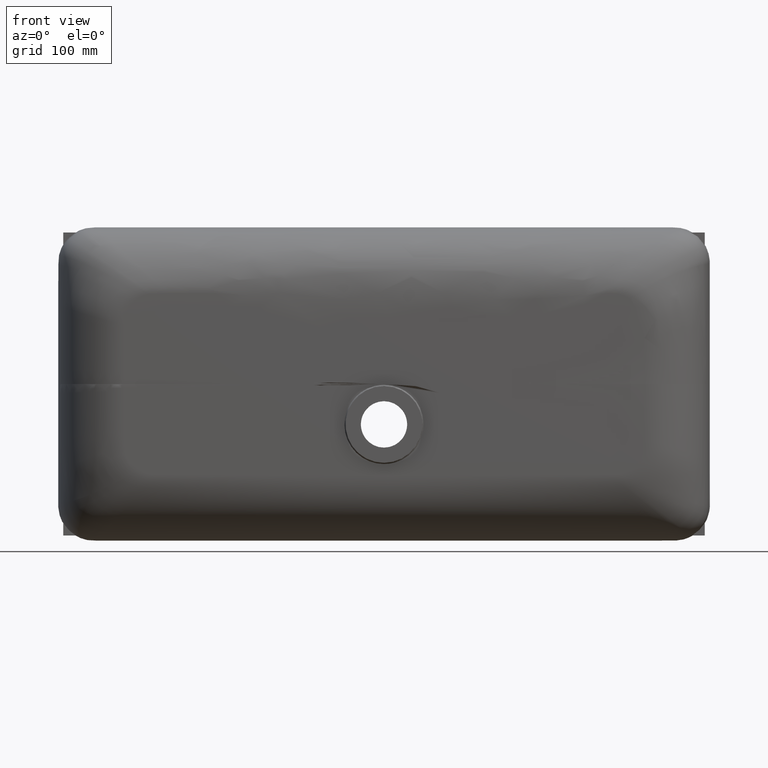
[diagram: clean part render]
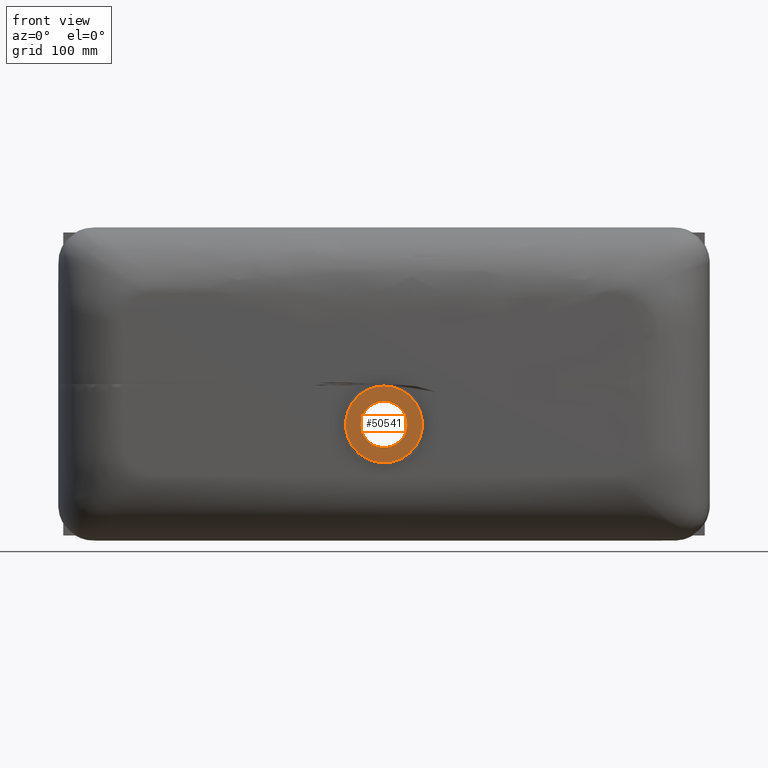
[diagram: same view with one face highlighted and labeled with its STEP entity id]
A machine part, front view. The second image highlights one B-rep face of the part: STEP entity #50541.
In plain terms, the highlighted planar face has unit normal (0, 1, 0).
Its self-contained STEP definition (entity closure, byte-faithful):
#9421 = CIRCLE ( 'NONE', #113271, 38.00000000000000000 ) ;
#13285 = CIRCLE ( 'NONE', #182597, 23.00000000000000000 ) ;
#39462 = ORIENTED_EDGE ( 'NONE', *, *, #148124, .F. ) ;
#41163 = AXIS2_PLACEMENT_3D ( 'NONE', #147967, #42133, #165717 ) ;
#42133 = DIRECTION ( 'NONE',  ( 0.0000000000000000000, 1.000000000000000000, 0.0000000000000000000 ) ) ;
#42904 = CARTESIAN_POINT ( 'NONE',  ( 0.0000000000000000000, -110.0000000000000100, -40.00000000000000700 ) ) ;
#45800 = ORIENTED_EDGE ( 'NONE', *, *, #176130, .F. ) ;
#48972 = CARTESIAN_POINT ( 'NONE',  ( 0.0000000000000000000, -110.0000000000136400, -40.00000000000000700 ) ) ;
#50541 = ADVANCED_FACE ( 'NONE', ( #140756, #165787 ), #201267, .F. ) ;
#60460 = EDGE_CURVE ( 'NONE', #82693, #167705, #13285, .T. ) ;
#60685 = DIRECTION ( 'NONE',  ( 0.0000000000000000000, 0.0000000000000000000, 1.000000000000000000 ) ) ;
#66776 = DIRECTION ( 'NONE',  ( 0.0000000000000000000, 0.0000000000000000000, 1.000000000000000000 ) ) ;
#69396 = VERTEX_POINT ( 'NONE', #87631 ) ;
#82693 = VERTEX_POINT ( 'NONE', #216479 ) ;
#87631 = CARTESIAN_POINT ( 'NONE',  ( 0.0000000000000000000, -110.0000000000136400, -78.00000000000001400 ) ) ;
#89387 = CARTESIAN_POINT ( 'NONE',  ( 4.653657836759941200E-015, -110.0000000000136400, -2.000000000000008900 ) ) ;
#104427 = DIRECTION ( 'NONE',  ( 0.0000000000000000000, 1.000000000000000000, 0.0000000000000000000 ) ) ;
#113271 = AXIS2_PLACEMENT_3D ( 'NONE', #48972, #172545, #66776 ) ;
#126274 = EDGE_LOOP ( 'NONE', ( #219553, #140320 ) ) ;
#132745 = CIRCLE ( 'NONE', #41163, 38.00000000000000000 ) ;
#136278 = VERTEX_POINT ( 'NONE', #89387 ) ;
#140320 = ORIENTED_EDGE ( 'NONE', *, *, #154195, .T. ) ;
#140756 = FACE_BOUND ( 'NONE', #126274, .T. ) ;
#144297 = EDGE_LOOP ( 'NONE', ( #45800, #39462 ) ) ;
#145033 = AXIS2_PLACEMENT_3D ( 'NONE', #183520, #218835, #219040 ) ;
#147967 = CARTESIAN_POINT ( 'NONE',  ( 0.0000000000000000000, -110.0000000000136400, -40.00000000000000700 ) ) ;
#148124 = EDGE_CURVE ( 'NONE', #136278, #69396, #132745, .T. ) ;
#154049 = CIRCLE ( 'NONE', #174117, 23.00000000000000000 ) ;
#154195 = EDGE_CURVE ( 'NONE', #167705, #82693, #154049, .T. ) ;
#165717 = DIRECTION ( 'NONE',  ( 0.0000000000000000000, 0.0000000000000000000, 1.000000000000000000 ) ) ;
#165787 = FACE_OUTER_BOUND ( 'NONE', #144297, .T. ) ;
#166485 = DIRECTION ( 'NONE',  ( 0.0000000000000000000, 1.000000000000000000, 0.0000000000000000000 ) ) ;
#167239 = CARTESIAN_POINT ( 'NONE',  ( 2.816687638038912000E-015, -110.0000000000000100, -17.00000000000000700 ) ) ;
#167705 = VERTEX_POINT ( 'NONE', #167239 ) ;
#172545 = DIRECTION ( 'NONE',  ( 0.0000000000000000000, 1.000000000000000000, 0.0000000000000000000 ) ) ;
#174117 = AXIS2_PLACEMENT_3D ( 'NONE', #42904, #166485, #60685 ) ;
#176130 = EDGE_CURVE ( 'NONE', #69396, #136278, #9421, .T. ) ;
#182597 = AXIS2_PLACEMENT_3D ( 'NONE', #210177, #104427, #227972 ) ;
#183520 = CARTESIAN_POINT ( 'NONE',  ( 0.0000000000000000000, -110.0000000000000100, -40.00000000000000700 ) ) ;
#201267 = PLANE ( 'NONE',  #145033 ) ;
#210177 = CARTESIAN_POINT ( 'NONE',  ( 0.0000000000000000000, -110.0000000000000100, -40.00000000000000700 ) ) ;
#216479 = CARTESIAN_POINT ( 'NONE',  ( 0.0000000000000000000, -110.0000000000000100, -63.00000000000000000 ) ) ;
#218835 = DIRECTION ( 'NONE',  ( 0.0000000000000000000, 1.000000000000000000, 0.0000000000000000000 ) ) ;
#219040 = DIRECTION ( 'NONE',  ( 0.0000000000000000000, -0.0000000000000000000, 1.000000000000000000 ) ) ;
#219553 = ORIENTED_EDGE ( 'NONE', *, *, #60460, .T. ) ;
#227972 = DIRECTION ( 'NONE',  ( 0.0000000000000000000, 0.0000000000000000000, 1.000000000000000000 ) ) ;